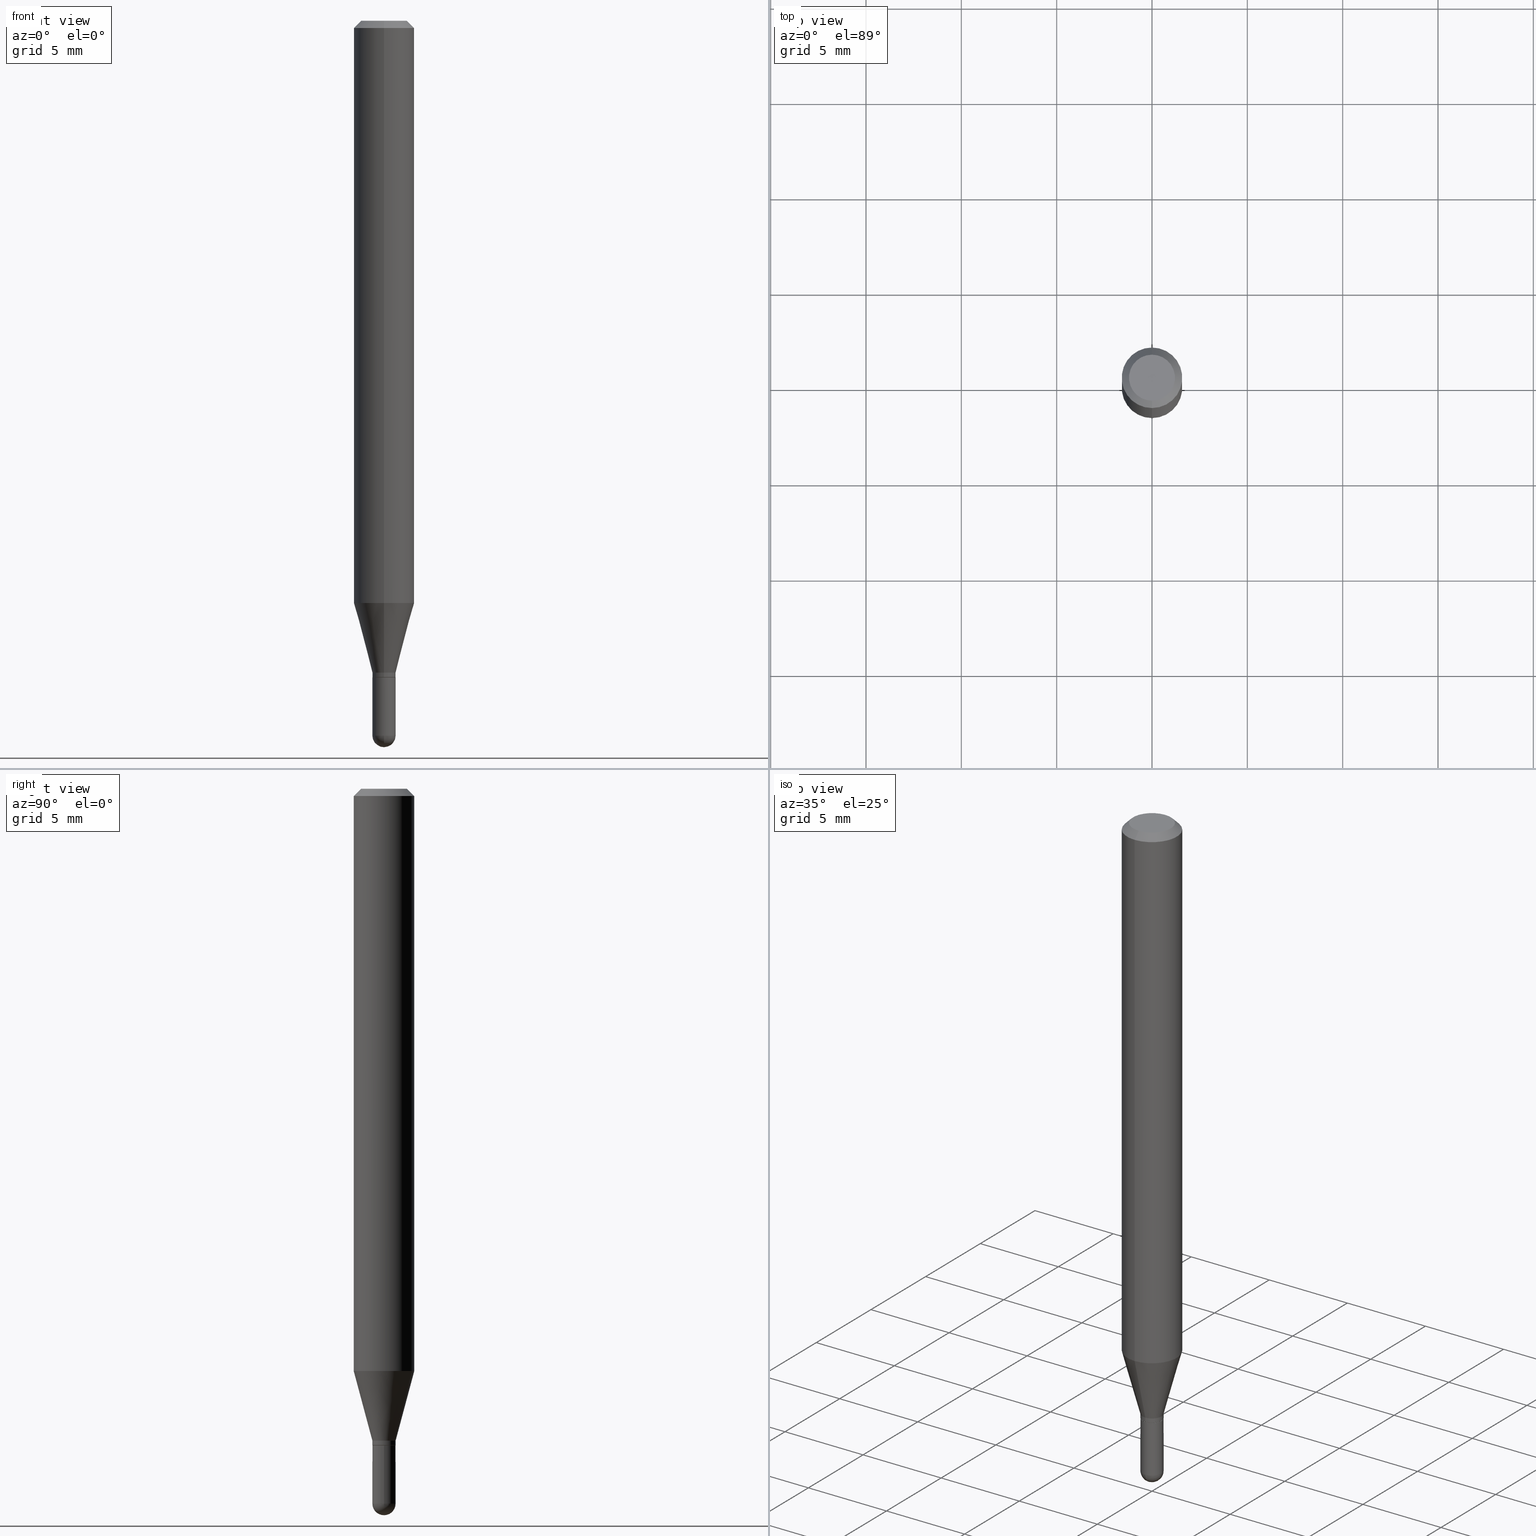
[diagram: canonical four-view strip — front | top / right | iso, engineering-drawing reading convention]
A machine part, canonical four-view strip (front | top / right | iso — engineering-drawing reading convention). The complete STEP part file that produces these views, byte-faithful:
ISO-10303-21;
HEADER;
FILE_DESCRIPTION (( 'STEP AP203' ),
    '1' );
FILE_NAME ('00925.STEP',
    '2024-03-07T18:57:01',
    ( '' ),
    ( '' ),
    'SwSTEP 2.0',
    'SolidWorks 2023',
    '' );
FILE_SCHEMA (( 'CONFIG_CONTROL_DESIGN' ));
ENDSEC;

DATA;
#1 = LINE ( 'NONE', #390, #440 ) ;
#2 = VERTEX_POINT ( 'NONE', #88 ) ;
#3 = LINE ( 'NONE', #154, #249 ) ;
#4 = EDGE_LOOP ( 'NONE', ( #438, #356 ) ) ;
#5 = CIRCLE ( 'NONE', #409, 0.04749999999999999362 ) ;
#6 = AXIS2_PLACEMENT_3D ( 'NONE', #458, #24, #225 ) ;
#7 = CARTESIAN_POINT ( 'NONE',  ( -1.675911042644373241E-16, -0.02400000000000474323, -1.355500000000000371 ) ) ;
#8 = CARTESIAN_POINT ( 'NONE',  ( -1.675911042644369543E-16, -0.02400000000000462527, -1.346000000000000085 ) ) ;
#9 = FACE_OUTER_BOUND ( 'NONE', #190, .T. ) ;
#10 = VECTOR ( 'NONE', #411, 39.37007874015748143 ) ;
#11 = ORIENTED_EDGE ( 'NONE', *, *, #361, .F. ) ;
#12 = AXIS2_PLACEMENT_3D ( 'NONE', #313, #437, #152 ) ;
#13 = FACE_OUTER_BOUND ( 'NONE', #188, .T. ) ;
#14 = DIRECTION ( 'NONE',  ( -4.937700262164674260E-15, -0.7071067811865632269, 0.7071067811865319186 ) ) ;
#15 =( NAMED_UNIT ( * ) PLANE_ANGLE_UNIT ( ) SI_UNIT ( $, .RADIAN. ) );
#16 = DIRECTION ( 'NONE',  ( -6.982962677686265922E-15, -1.000000000000000000, 0.000000000000000000 ) ) ;
#17 = CIRCLE ( 'NONE', #389, 0.02400000000000003866 ) ;
#18 = AXIS2_PLACEMENT_3D ( 'NONE', #97, #65, #307 ) ;
#19 = DIRECTION ( 'NONE',  ( -2.445477235489228020E-29, 3.491469267599920324E-15, 1.000000000000000000 ) ) ;
#20 =( NAMED_UNIT ( * ) SI_UNIT ( $, .STERADIAN. ) SOLID_ANGLE_UNIT ( ) );
#21 = EDGE_CURVE ( 'NONE', #323, #510, #166, .T. ) ;
#22 = CARTESIAN_POINT ( 'NONE',  ( -1.640996229255941198E-16, -0.02350000000000473585, -1.356000000000000316 ) ) ;
#23 = APPROVAL_DATE_TIME ( #63, #84 ) ;
#24 = DIRECTION ( 'NONE',  ( -2.445477235489228020E-29, 3.491469267599920324E-15, 1.000000000000000000 ) ) ;
#25 = AXIS2_PLACEMENT_3D ( 'NONE', #434, #280, #150 ) ;
#26 = ADVANCED_FACE ( 'NONE', ( #368 ), #47, .T. ) ;
#27 = CARTESIAN_POINT ( 'NONE',  ( 3.316055701187045333E-29, -4.734448695471306216E-15, -1.356000000000000316 ) ) ;
#28 = EDGE_LOOP ( 'NONE', ( #135, #367, #195, #198 ) ) ;
#29 = EDGE_CURVE ( 'NONE', #115, #271, #240, .T. ) ;
#30 = CARTESIAN_POINT ( 'NONE',  ( 3.609511957929261635E-29, -5.153426456132482850E-15, -1.475999999999999979 ) ) ;
#31 = ORIENTED_EDGE ( 'NONE', *, *, #169, .F. ) ;
#32 = DIRECTION ( 'NONE',  ( -2.445468806185136597E-29, 3.491481338843145583E-15, 1.000000000000000000 ) ) ;
#33 = APPROVAL_ROLE ( '' ) ;
#34 = ORIENTED_EDGE ( 'NONE', *, *, #59, .F. ) ;
#35 = CIRCLE ( 'NONE', #350, 0.06250000000000000000 ) ;
#36 = FACE_OUTER_BOUND ( 'NONE', #286, .T. ) ;
#37 = LOCAL_TIME ( 13, 57, 1.000000000000000000, #338 ) ;
#38 = DATE_AND_TIME ( #255, #283 ) ;
#39 = VERTEX_POINT ( 'NONE', #413 ) ;
#40 = CARTESIAN_POINT ( 'NONE',  ( 0.000000000000000000, 0.000000000000000000, 0.000000000000000000 ) ) ;
#41 = EDGE_LOOP ( 'NONE', ( #145, #500, #171, #393 ) ) ;
#42 = DIRECTION ( 'NONE',  ( -2.445477235489228020E-29, 3.491469267599920324E-15, 1.000000000000000000 ) ) ;
#43 = CONICAL_SURFACE ( 'NONE', #172, 0.02399999999999992764, 0.2617993877991505181 ) ;
#44 = CONICAL_SURFACE ( 'NONE', #109, 0.02350000000000000352, 0.7853981633974739252 ) ;
#45 = DIRECTION ( 'NONE',  ( -7.105427357600999492E-15, -1.000000000000000000, 0.000000000000000000 ) ) ;
#46 = CARTESIAN_POINT ( 'NONE',  ( -0.02400000000000000397, -4.773407319219470337E-15, -1.475999999999999979 ) ) ;
#47 = CYLINDRICAL_SURFACE ( 'NONE', #461, 0.02399999999999992764 ) ;
#48 = ADVANCED_FACE ( 'NONE', ( #247 ), #50, .F. ) ;
#49 = CLOSED_SHELL ( 'NONE', ( #26, #448, #233, #345, #285, #148, #314, #136, #48, #436, #95, #92 ) ) ;
#50 = PLANE ( 'NONE',  #129 ) ;
#51 = CIRCLE ( 'NONE', #365, 0.02400000000000000050 ) ;
#52 = DIRECTION ( 'NONE',  ( 6.982962677686265922E-15, 1.000000000000000000, 0.000000000000000000 ) ) ;
#53 = SECURITY_CLASSIFICATION_LEVEL ( 'unclassified' ) ;
#54 = ORIENTED_EDGE ( 'NONE', *, *, #268, .F. ) ;
#55 = DIMENSIONAL_EXPONENTS ( 1.000000000000000000, 0.000000000000000000, 0.000000000000000000, 0.000000000000000000, 0.000000000000000000, 0.000000000000000000, 0.000000000000000000 ) ;
#56 = DIRECTION ( 'NONE',  ( -2.445468806185136597E-29, 3.491481338843145583E-15, 1.000000000000000000 ) ) ;
#57 = APPLICATION_PROTOCOL_DEFINITION ( 'international standard', 'config_control_design', 1994, #181 ) ;
#58 = FACE_OUTER_BOUND ( 'NONE', #358, .T. ) ;
#59 = EDGE_CURVE ( 'NONE', #159, #71, #364, .T. ) ;
#60 = DIRECTION ( 'NONE',  ( 1.000000000000000000, 0.000000000000000000, 0.000000000000000000 ) ) ;
#61 = AXIS2_PLACEMENT_3D ( 'NONE', #492, #56, #139 ) ;
#62 = CARTESIAN_POINT ( 'NONE',  ( 3.840629472727447874E-16, 0.04749999999999999362, -1.747056831868805136E-16 ) ) ;
#63 = DATE_AND_TIME ( #335, #164 ) ;
#64 = DIRECTION ( 'NONE',  ( 1.839019923739601893E-15, 0.2588190451025252359, 0.9659258262890670910 ) ) ;
#65 = DIRECTION ( 'NONE',  ( -1.000000000000000000, 6.982962677686265922E-15, -4.883557194083112901E-29 ) ) ;
#66 = DIRECTION ( 'NONE',  ( 1.000000000000000000, -6.982962677686250144E-15, 0.000000000000000000 ) ) ;
#67 = VERTEX_POINT ( 'NONE', #81 ) ;
#68 = CONICAL_SURFACE ( 'NONE', #218, 0.06250000000000000000, 0.7853981633974483900 ) ;
#69 = AXIS2_PLACEMENT_3D ( 'NONE', #187, #399, #475 ) ;
#70 = CARTESIAN_POINT ( 'NONE',  ( -1.675911042644698646E-16, -0.02399999999999992764, 8.379526242239783327E-17 ) ) ;
#71 = VERTEX_POINT ( 'NONE', #251 ) ;
#72 = FACE_OUTER_BOUND ( 'NONE', #79, .T. ) ;
#73 = ORIENTED_EDGE ( 'NONE', *, *, #421, .F. ) ;
#74 = DIRECTION ( 'NONE',  ( -2.445477235489227739E-29, 3.491469267599920324E-15, 1.000000000000000000 ) ) ;
#75 = VERTEX_POINT ( 'NONE', #245 ) ;
#76 = AXIS2_PLACEMENT_3D ( 'NONE', #103, #342, #382 ) ;
#77 = AXIS2_PLACEMENT_3D ( 'NONE', #486, #219, #450 ) ;
#78 = DIRECTION ( 'NONE',  ( -6.982962677686265133E-15, -1.000000000000000000, 0.000000000000000000 ) ) ;
#79 = EDGE_LOOP ( 'NONE', ( #477, #263, #405, #31 ) ) ;
#80 = DIRECTION ( 'NONE',  ( -2.445468806185136597E-29, 3.491481338843145583E-15, 1.000000000000000000 ) ) ;
#81 = CARTESIAN_POINT ( 'NONE',  ( 0.02400000000000000397, -5.111528680066364398E-15, -1.475999999999999979 ) ) ;
#82 = ADVANCED_FACE ( 'NONE', ( #447 ), #293, .T. ) ;
#83 = CARTESIAN_POINT ( 'NONE',  ( -4.287811248607203282E-16, -0.06250000000000005551, -0.01499999999999979128 ) ) ;
#84 = APPROVAL ( #180, 'UNSPECIFIED' ) ;
#85 = DIRECTION ( 'NONE',  ( 6.982962677686265922E-15, 1.000000000000000000, -3.491469267599920324E-15 ) ) ;
#86 = UNCERTAINTY_MEASURE_WITH_UNIT (LENGTH_MEASURE( 1.000000000000000082E-05 ), #343, 'distance_accuracy_value', 'NONE');
#87 = DIRECTION ( 'NONE',  ( 6.982962677686265922E-15, 1.000000000000000000, 0.000000000000000000 ) ) ;
#88 = CARTESIAN_POINT ( 'NONE',  ( 1.687538997430566571E-16, 0.02349999999999526773, -1.356000000000000316 ) ) ;
#89 = AXIS2_PLACEMENT_3D ( 'NONE', #126, #481, #292 ) ;
#90 = CARTESIAN_POINT ( 'NONE',  ( 3.607459558835231439E-29, -5.156365608450436393E-15, -1.475999999999999979 ) ) ;
#91 = CIRCLE ( 'NONE', #141, 0.02399999999999992764 ) ;
#92 = ADVANCED_FACE ( 'NONE', ( #13 ), #412, .T. ) ;
#93 = PERSON_AND_ORGANIZATION_ROLE ( 'classification_officer' ) ;
#94 = DIRECTION ( 'NONE',  ( -6.982962677686265922E-15, -1.000000000000000000, 3.483106191921935554E-15 ) ) ;
#95 = ADVANCED_FACE ( 'NONE', ( #9 ), #415, .T. ) ;
#96 = CARTESIAN_POINT ( 'NONE',  ( 3.668215853233844657E-31, -5.237203901399883839E-17, -0.01500000000000000812 ) ) ;
#97 = CARTESIAN_POINT ( 'NONE',  ( 3.607459558835231439E-29, -5.156365608450436393E-15, -1.475999999999999979 ) ) ;
#98 = CC_DESIGN_PERSON_AND_ORGANIZATION_ASSIGNMENT ( #451, #93, ( #391 ) ) ;
#99 = CARTESIAN_POINT ( 'NONE',  ( 3.291612358968501825E-29, -4.699517634189492675E-15, -1.346000000000000085 ) ) ;
#100 = COORDINATED_UNIVERSAL_TIME_OFFSET ( 5, 0, .BEHIND. ) ;
#101 = EDGE_LOOP ( 'NONE', ( #321, #395, #147, #281 ) ) ;
#102 = AXIS2_PLACEMENT_3D ( 'NONE', #498, #19, #380 ) ;
#103 = CARTESIAN_POINT ( 'NONE',  ( 3.609511957929261635E-29, -5.153426456132482850E-15, -1.475999999999999979 ) ) ;
#104 = EDGE_LOOP ( 'NONE', ( #273, #441, #425, #113, #73 ) ) ;
#105 = CARTESIAN_POINT ( 'NONE',  ( -1.640996229255941198E-16, -0.02350000000000473585, -1.356000000000000316 ) ) ;
#106 = PLANE ( 'NONE',  #131 ) ;
#107 = APPROVAL_DATE_TIME ( #353, #165 ) ;
#108 = ORIENTED_EDGE ( 'NONE', *, *, #452, .F. ) ;
#109 = AXIS2_PLACEMENT_3D ( 'NONE', #466, #272, #236 ) ;
#110 = DIRECTION ( 'NONE',  ( -2.445477235489228300E-29, 3.491469267599920324E-15, 1.000000000000000000 ) ) ;
#111 = EDGE_LOOP ( 'NONE', ( #239, #449, #325, #279, #494 ) ) ;
#112 = CARTESIAN_POINT ( 'NONE',  ( 0.02400000000000000050, -4.902039799735776870E-15, -1.356000000000000316 ) ) ;
#113 = ORIENTED_EDGE ( 'NONE', *, *, #288, .T. ) ;
#114 = DIRECTION ( 'NONE',  ( 1.000000000000000000, -6.982962677686266711E-15, 4.876176775795935232E-29 ) ) ;
#115 = VERTEX_POINT ( 'NONE', #7 ) ;
#116 = VECTOR ( 'NONE', #64, 39.37007874015748854 ) ;
#117 = APPROVAL_PERSON_ORGANIZATION ( #223, #414, #215 ) ;
#118 = CARTESIAN_POINT ( 'NONE',  ( -4.364351673553912750E-16, -0.06250000000000005551, -0.01499999999999979128 ) ) ;
#119 = DESIGN_CONTEXT ( 'detailed design', #202, 'design' ) ;
#120 = DIRECTION ( 'NONE',  ( -1.000000000000000000, 6.982962677686265922E-15, -4.883557194083112901E-29 ) ) ;
#121 = EDGE_CURVE ( 'NONE', #132, #506, #445, .T. ) ;
#122 = DIRECTION ( 'NONE',  ( -6.982962677686265133E-15, -1.000000000000000000, 3.491469267599920324E-15 ) ) ;
#123 = AXIS2_PLACEMENT_3D ( 'NONE', #259, #134, #346 ) ;
#124 = VERTEX_POINT ( 'NONE', #46 ) ;
#125 = APPROVAL_PERSON_ORGANIZATION ( #167, #84, #459 ) ;
#126 = CARTESIAN_POINT ( 'NONE',  ( 3.314844392705649614E-29, -4.732686592231693632E-15, -1.355500000000000371 ) ) ;
#127 = DIRECTION ( 'NONE',  ( -2.445468806185136877E-29, 3.491481338843145188E-15, 1.000000000000000000 ) ) ;
#128 = PERSON_AND_ORGANIZATION_ROLE ( 'creator' ) ;
#129 = AXIS2_PLACEMENT_3D ( 'NONE', #211, #372, #85 ) ;
#130 = CARTESIAN_POINT ( 'NONE',  ( 0.02400000000000000397, -1.675911042644704316E-16, 1.170282426191024667E-30 ) ) ;
#131 = AXIS2_PLACEMENT_3D ( 'NONE', #269, #74, #197 ) ;
#132 = VERTEX_POINT ( 'NONE', #289 ) ;
#133 = EDGE_CURVE ( 'NONE', #75, #472, #17, .T. ) ;
#134 = DIRECTION ( 'NONE',  ( -2.445477235489228020E-29, 3.491469267599920324E-15, 1.000000000000000000 ) ) ;
#135 = ORIENTED_EDGE ( 'NONE', *, *, #268, .T. ) ;
#136 = ADVANCED_FACE ( 'NONE', ( #205 ), #68, .T. ) ;
#137 = CARTESIAN_POINT ( 'NONE',  ( 2.940236515241945390E-29, -4.197849517249188631E-15, -1.202316043908598697 ) ) ;
#138 = PERSON_AND_ORGANIZATION_ROLE ( 'creator' ) ;
#139 = DIRECTION ( 'NONE',  ( 1.000000000000000000, -6.982962677686266711E-15, 4.876176775795935232E-29 ) ) ;
#140 = ORIENTED_EDGE ( 'NONE', *, *, #213, .T. ) ;
#141 = AXIS2_PLACEMENT_3D ( 'NONE', #352, #504, #78 ) ;
#142 = DIRECTION ( 'NONE',  ( -2.445468806185136877E-29, 3.491481338843145188E-15, 1.000000000000000000 ) ) ;
#143 = ORIENTED_EDGE ( 'NONE', *, *, #421, .T. ) ;
#144 = LINE ( 'NONE', #351, #209 ) ;
#145 = ORIENTED_EDGE ( 'NONE', *, *, #133, .F. ) ;
#146 = LINE ( 'NONE', #70, #162 ) ;
#147 = ORIENTED_EDGE ( 'NONE', *, *, #59, .T. ) ;
#148 = ADVANCED_FACE ( 'NONE', ( #179 ), #43, .T. ) ;
#149 = CIRCLE ( 'NONE', #25, 0.02399999999999992764 ) ;
#150 = DIRECTION ( 'NONE',  ( -6.982962677686265133E-15, -1.000000000000000000, 0.000000000000000000 ) ) ;
#151 = ORIENTED_EDGE ( 'NONE', *, *, #456, .F. ) ;
#152 = DIRECTION ( 'NONE',  ( -6.982962677686265922E-15, -1.000000000000000000, 3.491469267599920324E-15 ) ) ;
#153 = ORIENTED_EDGE ( 'NONE', *, *, #329, .T. ) ;
#154 = CARTESIAN_POINT ( 'NONE',  ( 4.440892098500625669E-16, 0.06250000000000000000, -2.182168292249950203E-16 ) ) ;
#155 = ORIENTED_EDGE ( 'NONE', *, *, #468, .T. ) ;
#156 = CIRCLE ( 'NONE', #402, 0.02400000000000003866 ) ;
#157 = EDGE_CURVE ( 'NONE', #159, #323, #5, .T. ) ;
#158 = DIRECTION ( 'NONE',  ( -1.807323732225331717E-15, -0.2588190451025184080, 0.9659258262890689783 ) ) ;
#159 = VERTEX_POINT ( 'NONE', #62 ) ;
#160 = ORIENTED_EDGE ( 'NONE', *, *, #246, .T. ) ;
#161 = EDGE_CURVE ( 'NONE', #71, #510, #469, .T. ) ;
#162 = VECTOR ( 'NONE', #404, 39.37007874015748143 ) ;
#163 = DIRECTION ( 'NONE',  ( -2.445477235489228020E-29, 3.491469267599920324E-15, 1.000000000000000000 ) ) ;
#164 = LOCAL_TIME ( 13, 57, 1.000000000000000000, #100 ) ;
#165 = APPROVAL ( #229, 'UNSPECIFIED' ) ;
#166 = LINE ( 'NONE', #83, #318 ) ;
#167 = PERSON_AND_ORGANIZATION ( #256, #491 ) ;
#168 = CARTESIAN_POINT ( 'NONE',  ( 3.316067131323393615E-29, -4.734432326865493807E-15, -1.356000000000000316 ) ) ;
#169 = EDGE_CURVE ( 'NONE', #328, #115, #222, .T. ) ;
#170 = PERSON_AND_ORGANIZATION ( #256, #491 ) ;
#171 = ORIENTED_EDGE ( 'NONE', *, *, #186, .F. ) ;
#172 = AXIS2_PLACEMENT_3D ( 'NONE', #99, #214, #260 ) ;
#173 = DIRECTION ( 'NONE',  ( -2.445477235489228020E-29, 3.491469267599920324E-15, 1.000000000000000000 ) ) ;
#174 = CC_DESIGN_PERSON_AND_ORGANIZATION_ASSIGNMENT ( #266, #347, ( #420 ) ) ;
#175 = CIRCLE ( 'NONE', #470, 0.02400000000000000050 ) ;
#176 = MECHANICAL_CONTEXT ( 'NONE', #181, 'mechanical' ) ;
#177 = DIRECTION ( 'NONE',  ( 2.445477235489228020E-29, -3.491469267599920324E-15, -1.000000000000000000 ) ) ;
#178 = PERSON_AND_ORGANIZATION ( #256, #491 ) ;
#179 = FACE_OUTER_BOUND ( 'NONE', #237, .T. ) ;
#180 = APPROVAL_STATUS ( 'not_yet_approved' ) ;
#181 = APPLICATION_CONTEXT ( 'configuration controlled 3d designs of mechanical parts and assemblies' ) ;
#182 = LINE ( 'NONE', #130, #241 ) ;
#183 = AXIS2_PLACEMENT_3D ( 'NONE', #408, #208, #203 ) ;
#184 = CIRCLE ( 'NONE', #261, 0.06250000000000000000 ) ;
#185 = ADVANCED_BREP_SHAPE_REPRESENTATION ( '00925', ( #369, #192, #480 ), #232 ) ;
#186 = EDGE_CURVE ( 'NONE', #67, #39, #306, .T. ) ;
#187 = CARTESIAN_POINT ( 'NONE',  ( 0.000000000000000000, 0.000000000000000000, 0.000000000000000000 ) ) ;
#188 = EDGE_LOOP ( 'NONE', ( #316, #460, #153, #482 ) ) ;
#189 = FACE_OUTER_BOUND ( 'NONE', #28, .T. ) ;
#190 = EDGE_LOOP ( 'NONE', ( #433, #309, #200, #479 ) ) ;
#191 = ADVANCED_FACE ( 'NONE', ( #299 ), #216, .T. ) ;
#192 = MANIFOLD_SOLID_BREP ( 'Body-Move/Copy2[2]', #49 ) ;
#193 = DIRECTION ( 'NONE',  ( 1.000000000000000000, -6.982962677686250144E-15, 0.000000000000000000 ) ) ;
#194 = EDGE_CURVE ( 'NONE', #328, #2, #423, .T. ) ;
#195 = ORIENTED_EDGE ( 'NONE', *, *, #201, .F. ) ;
#196 = VECTOR ( 'NONE', #14, 39.37007874015748143 ) ;
#197 = DIRECTION ( 'NONE',  ( -6.982962677686265922E-15, -1.000000000000000000, 3.491469267599920324E-15 ) ) ;
#198 = ORIENTED_EDGE ( 'NONE', *, *, #373, .F. ) ;
#199 = CARTESIAN_POINT ( 'NONE',  ( -1.705302565823881057E-16, -0.02400000000000517691, -1.475999999999999979 ) ) ;
#200 = ORIENTED_EDGE ( 'NONE', *, *, #169, .T. ) ;
#201 = EDGE_CURVE ( 'NONE', #510, #71, #35, .T. ) ;
#202 = APPLICATION_CONTEXT ( 'configuration controlled 3d designs of mechanical parts and assemblies' ) ;
#203 = DIRECTION ( 'NONE',  ( -6.982962677686265922E-15, -1.000000000000000000, 0.000000000000000000 ) ) ;
#204 = AXIS2_PLACEMENT_3D ( 'NONE', #30, #505, #66 ) ;
#205 = FACE_OUTER_BOUND ( 'NONE', #101, .T. ) ;
#206 = CARTESIAN_POINT ( 'NONE',  ( 0.000000000000000000, 0.000000000000000000, 0.000000000000000000 ) ) ;
#207 = EDGE_CURVE ( 'NONE', #443, #132, #291, .T. ) ;
#208 = DIRECTION ( 'NONE',  ( -2.445477235489228020E-29, 3.491469267599920324E-15, 1.000000000000000000 ) ) ;
#209 = VECTOR ( 'NONE', #142, 39.37007874015748143 ) ;
#210 = LOCAL_TIME ( 13, 57, 1.000000000000000000, #432 ) ;
#211 = CARTESIAN_POINT ( 'NONE',  ( 3.316907271900976096E-16, 0.04749999999999999362, -1.702752366989383478E-16 ) ) ;
#212 = PRODUCT_DEFINITION_SHAPE ( 'NONE', 'NONE',  #265 ) ;
#213 = EDGE_CURVE ( 'NONE', #474, #506, #296, .T. ) ;
#214 = DIRECTION ( 'NONE',  ( -2.445477235489228020E-29, 3.491469267599920324E-15, 1.000000000000000000 ) ) ;
#215 = APPROVAL_ROLE ( '' ) ;
#216 = CYLINDRICAL_SURFACE ( 'NONE', #61, 0.02400000000000000397 ) ;
#217 = COORDINATED_UNIVERSAL_TIME_OFFSET ( 5, 0, .BEHIND. ) ;
#218 = AXIS2_PLACEMENT_3D ( 'NONE', #331, #330, #370 ) ;
#219 = DIRECTION ( 'NONE',  ( -2.445477235489228020E-29, 3.491469267599920324E-15, 1.000000000000000000 ) ) ;
#220 = AXIS2_PLACEMENT_3D ( 'NONE', #396, #32, #193 ) ;
#221 = APPROVAL_STATUS ( 'not_yet_approved' ) ;
#222 = LINE ( 'NONE', #22, #196 ) ;
#223 = PERSON_AND_ORGANIZATION ( #256, #491 ) ;
#224 = ORIENTED_EDGE ( 'NONE', *, *, #373, .T. ) ;
#225 = DIRECTION ( 'NONE',  ( -6.982962677686265133E-15, -1.000000000000000000, 0.000000000000000000 ) ) ;
#226 = DATE_AND_TIME ( #381, #416 ) ;
#227 = EDGE_CURVE ( 'NONE', #2, #328, #332, .T. ) ;
#228 = CYLINDRICAL_SURFACE ( 'NONE', #69, 0.06250000000000000000 ) ;
#229 = APPROVAL_STATUS ( 'not_yet_approved' ) ;
#230 = EDGE_LOOP ( 'NONE', ( #339, #512, #151, #108 ) ) ;
#231 = VECTOR ( 'NONE', #110, 39.37007874015748143 ) ;
#232 =( GEOMETRIC_REPRESENTATION_CONTEXT ( 3 ) GLOBAL_UNCERTAINTY_ASSIGNED_CONTEXT ( ( #86 ) ) GLOBAL_UNIT_ASSIGNED_CONTEXT ( ( #343, #15, #20 ) ) REPRESENTATION_CONTEXT ( 'NONE', 'WORKASPACE' ) );
#233 = ADVANCED_FACE ( 'NONE', ( #58 ), #484, .T. ) ;
#234 = CARTESIAN_POINT ( 'NONE',  ( -0.02400000000000000050, -4.773407319219470337E-15, -1.356000000000000316 ) ) ;
#235 = ORIENTED_EDGE ( 'NONE', *, *, #418, .T. ) ;
#236 = DIRECTION ( 'NONE',  ( -6.982962677686265922E-15, -1.000000000000000000, 0.000000000000000000 ) ) ;
#237 = EDGE_LOOP ( 'NONE', ( #303, #467, #397, #252 ) ) ;
#238 = DIRECTION ( 'NONE',  ( -2.445468806185136597E-29, 3.491481338843145583E-15, 1.000000000000000000 ) ) ;
#239 = ORIENTED_EDGE ( 'NONE', *, *, #452, .T. ) ;
#240 = CIRCLE ( 'NONE', #89, 0.02399999999999992764 ) ;
#241 = VECTOR ( 'NONE', #127, 39.37007874015748143 ) ;
#242 = DIRECTION ( 'NONE',  ( -2.445477235489228300E-29, 3.491469267599920324E-15, 1.000000000000000000 ) ) ;
#243 = ORIENTED_EDGE ( 'NONE', *, *, #275, .F. ) ;
#244 = CARTESIAN_POINT ( 'NONE',  ( 3.316055701187045333E-29, -4.734448695471306216E-15, -1.356000000000000316 ) ) ;
#245 = CARTESIAN_POINT ( 'NONE',  ( 3.667177009730690077E-29, -5.238691584423694948E-15, -1.500000000000000222 ) ) ;
#246 = EDGE_CURVE ( 'NONE', #443, #474, #344, .T. ) ;
#247 = FACE_OUTER_BOUND ( 'NONE', #4, .T. ) ;
#248 = AXIS2_PLACEMENT_3D ( 'NONE', #375, #424, #94 ) ;
#249 = VECTOR ( 'NONE', #284, 39.37007874015748143 ) ;
#250 = CARTESIAN_POINT ( 'NONE',  ( 4.364351673553919652E-16, 0.06249999999999995143, -0.01500000000000022669 ) ) ;
#251 = CARTESIAN_POINT ( 'NONE',  ( 4.440892098500920998E-16, 0.06249999999999993755, -0.01500000000000022669 ) ) ;
#252 = ORIENTED_EDGE ( 'NONE', *, *, #213, .F. ) ;
#253 = CC_DESIGN_APPROVAL ( #414, ( #265 ) ) ;
#254 = DIRECTION ( 'NONE',  ( -2.445477235489228020E-29, 3.491469267599920324E-15, 1.000000000000000000 ) ) ;
#255 = CALENDAR_DATE ( 2024, 7, 3 ) ;
#256 = PERSON ( 'UNSPECIFIED', 'UNSPECIFIED', 'UNSPECIFIED', ('UNSPECIFIED'), ('UNSPECIFIED'), ('UNSPECIFIED') ) ;
#257 = CARTESIAN_POINT ( 'NONE',  ( 3.291612358968501825E-29, -4.699517634189492675E-15, -1.346000000000000085 ) ) ;
#258 = DATE_TIME_ROLE ( 'creation_date' ) ;
#259 = CARTESIAN_POINT ( 'NONE',  ( 2.940236515241945390E-29, -4.197849517249188631E-15, -1.202316043908598697 ) ) ;
#260 = DIRECTION ( 'NONE',  ( -6.982962677686265133E-15, -1.000000000000000000, 0.000000000000000000 ) ) ;
#261 = AXIS2_PLACEMENT_3D ( 'NONE', #137, #173, #374 ) ;
#262 = APPROVAL_PERSON_ORGANIZATION ( #311, #165, #33 ) ;
#263 = ORIENTED_EDGE ( 'NONE', *, *, #301, .T. ) ;
#264 = DIRECTION ( 'NONE',  ( -2.445477235489228020E-29, 3.491469267599920324E-15, 1.000000000000000000 ) ) ;
#265 = PRODUCT_DEFINITION ( 'UNKNOWN', '', #403, #119 ) ;
#266 = PERSON_AND_ORGANIZATION ( #256, #491 ) ;
#267 = ORIENTED_EDGE ( 'NONE', *, *, #329, .F. ) ;
#268 = EDGE_CURVE ( 'NONE', #506, #474, #184, .T. ) ;
#269 = CARTESIAN_POINT ( 'NONE',  ( 3.316067131323393615E-29, -4.734432326865493807E-15, -1.356000000000000316 ) ) ;
#270 = CALENDAR_DATE ( 2024, 7, 3 ) ;
#271 = VERTEX_POINT ( 'NONE', #422 ) ;
#272 = DIRECTION ( 'NONE',  ( -2.445477235489228020E-29, 3.491469267599920324E-15, 1.000000000000000000 ) ) ;
#273 = ORIENTED_EDGE ( 'NONE', *, *, #385, .F. ) ;
#274 = CIRCLE ( 'NONE', #220, 0.02400000000000000397 ) ;
#275 = EDGE_CURVE ( 'NONE', #323, #159, #478, .T. ) ;
#276 = DIRECTION ( 'NONE',  ( 1.000000000000000000, -6.982962677686251722E-15, 0.000000000000000000 ) ) ;
#277 = ORIENTED_EDGE ( 'NONE', *, *, #227, .F. ) ;
#278 = FACE_OUTER_BOUND ( 'NONE', #360, .T. ) ;
#279 = ORIENTED_EDGE ( 'NONE', *, *, #288, .F. ) ;
#280 = DIRECTION ( 'NONE',  ( -2.445477235489228020E-29, 3.491469267599920324E-15, 1.000000000000000000 ) ) ;
#281 = ORIENTED_EDGE ( 'NONE', *, *, #161, .T. ) ;
#282 = AXIS2_PLACEMENT_3D ( 'NONE', #40, #473, #114 ) ;
#283 = LOCAL_TIME ( 13, 57, 1.000000000000000000, #489 ) ;
#284 = DIRECTION ( 'NONE',  ( -2.445477235489228300E-29, 3.491469267599920324E-15, 1.000000000000000000 ) ) ;
#285 = ADVANCED_FACE ( 'NONE', ( #419 ), #490, .T. ) ;
#286 = EDGE_LOOP ( 'NONE', ( #155, #143 ) ) ;
#287 = CARTESIAN_POINT ( 'NONE',  ( 3.607459558835231439E-29, -5.156365608450436393E-15, -1.475999999999999979 ) ) ;
#288 = EDGE_CURVE ( 'NONE', #67, #312, #182, .T. ) ;
#289 = CARTESIAN_POINT ( 'NONE',  ( -1.675911042644369543E-16, -0.02400000000000462527, -1.346000000000000085 ) ) ;
#290 = EDGE_CURVE ( 'NONE', #75, #39, #156, .T. ) ;
#291 = CIRCLE ( 'NONE', #462, 0.02399999999999992764 ) ;
#292 = DIRECTION ( 'NONE',  ( -6.982962677686265133E-15, -1.000000000000000000, 0.000000000000000000 ) ) ;
#293 = SPHERICAL_SURFACE ( 'NONE', #348, 0.02400000000000003866 ) ;
#294 = CARTESIAN_POINT ( 'NONE',  ( 2.166911205863144618E-46, -3.093753550879202143E-32, -8.860892975884294793E-18 ) ) ;
#295 = PERSON_AND_ORGANIZATION_ROLE ( 'design_supplier' ) ;
#296 = CIRCLE ( 'NONE', #123, 0.06250000000000000000 ) ;
#297 = CC_DESIGN_APPROVAL ( #84, ( #403 ) ) ;
#298 = DIRECTION ( 'NONE',  ( 5.024295867788190974E-15, 0.7071067811865681119, 0.7071067811865270336 ) ) ;
#299 = FACE_OUTER_BOUND ( 'NONE', #111, .T. ) ;
#300 = CARTESIAN_POINT ( 'NONE',  ( 0.000000000000000000, 0.000000000000000000, 0.000000000000000000 ) ) ;
#301 = EDGE_CURVE ( 'NONE', #2, #271, #337, .T. ) ;
#302 = DIRECTION ( 'NONE',  ( 6.982962677686265922E-15, 1.000000000000000000, -3.483106191921935554E-15 ) ) ;
#303 = ORIENTED_EDGE ( 'NONE', *, *, #246, .F. ) ;
#304 = EDGE_CURVE ( 'NONE', #271, #115, #149, .T. ) ;
#305 = CARTESIAN_POINT ( 'NONE',  ( 3.668215853233844657E-31, -5.237203901399883839E-17, -0.01500000000000000812 ) ) ;
#306 = CIRCLE ( 'NONE', #76, 0.02400000000000000397 ) ;
#307 = DIRECTION ( 'NONE',  ( 6.982962677686265922E-15, 1.000000000000000000, 0.000000000000000000 ) ) ;
#308 = CC_DESIGN_APPROVAL ( #165, ( #391 ) ) ;
#309 = ORIENTED_EDGE ( 'NONE', *, *, #227, .T. ) ;
#310 = CARTESIAN_POINT ( 'NONE',  ( 1.705302565824234812E-16, 0.02399999999999992764, -8.379526242239783327E-17 ) ) ;
#311 = PERSON_AND_ORGANIZATION ( #256, #491 ) ;
#312 = VERTEX_POINT ( 'NONE', #112 ) ;
#313 = CARTESIAN_POINT ( 'NONE',  ( 0.000000000000000000, 0.000000000000000000, 0.000000000000000000 ) ) ;
#314 = ADVANCED_FACE ( 'NONE', ( #464 ), #322, .T. ) ;
#315 = DATE_TIME_ROLE ( 'classification_date' ) ;
#316 = ORIENTED_EDGE ( 'NONE', *, *, #418, .F. ) ;
#317 = CARTESIAN_POINT ( 'NONE',  ( -3.773273898774340269E-16, -0.04749999999999999362, 1.569838972351119241E-16 ) ) ;
#318 = VECTOR ( 'NONE', #333, 39.37007874015748143 ) ;
#319 = EDGE_LOOP ( 'NONE', ( #428, #140, #224, #465 ) ) ;
#320 = DIRECTION ( 'NONE',  ( -1.000000000000000000, 6.982962677686265922E-15, -4.876176775795935793E-29 ) ) ;
#321 = ORIENTED_EDGE ( 'NONE', *, *, #21, .F. ) ;
#322 = CYLINDRICAL_SURFACE ( 'NONE', #12, 0.06250000000000000000 ) ;
#323 = VERTEX_POINT ( 'NONE', #317 ) ;
#324 = CARTESIAN_POINT ( 'NONE',  ( -4.364351673553623829E-16, -0.06250000000000421885, -1.202316043908598253 ) ) ;
#325 = ORIENTED_EDGE ( 'NONE', *, *, #468, .F. ) ;
#326 = VECTOR ( 'NONE', #158, 39.37007874015748854 ) ;
#327 = VECTOR ( 'NONE', #298, 39.37007874015748143 ) ;
#328 = VERTEX_POINT ( 'NONE', #105 ) ;
#329 = EDGE_CURVE ( 'NONE', #115, #132, #146, .T. ) ;
#330 = DIRECTION ( 'NONE',  ( 2.445477235489228020E-29, -3.491469267599920324E-15, -1.000000000000000000 ) ) ;
#331 = CARTESIAN_POINT ( 'NONE',  ( 3.668215853233844657E-31, -5.237203901399883839E-17, -0.01500000000000000812 ) ) ;
#332 = CIRCLE ( 'NONE', #102, 0.02350000000000000352 ) ;
#333 = DIRECTION ( 'NONE',  ( -4.851104656540964275E-15, -0.7071067811865500152, -0.7071067811865450192 ) ) ;
#334 = CARTESIAN_POINT ( 'NONE',  ( 3.607459558835231439E-29, -5.156365608450436393E-15, -1.475999999999999979 ) ) ;
#335 = CALENDAR_DATE ( 2024, 7, 3 ) ;
#336 = CC_DESIGN_DATE_AND_TIME_ASSIGNMENT ( #455, #258, ( #265 ) ) ;
#337 = LINE ( 'NONE', #488, #327 ) ;
#338 = COORDINATED_UNIVERSAL_TIME_OFFSET ( 5, 0, .BEHIND. ) ;
#339 = ORIENTED_EDGE ( 'NONE', *, *, #290, .F. ) ;
#340 = AXIS2_PLACEMENT_3D ( 'NONE', #407, #42, #122 ) ;
#341 = CIRCLE ( 'NONE', #410, 0.02400000000000000397 ) ;
#342 = DIRECTION ( 'NONE',  ( -2.445468806185136597E-29, 3.491481338843145583E-15, 1.000000000000000000 ) ) ;
#343 =( CONVERSION_BASED_UNIT ( 'INCH', #493 ) LENGTH_UNIT ( ) NAMED_UNIT ( #55 ) );
#344 = LINE ( 'NONE', #463, #116 ) ;
#345 = ADVANCED_FACE ( 'NONE', ( #189 ), #228, .T. ) ;
#346 = DIRECTION ( 'NONE',  ( -6.982962677686265922E-15, -1.000000000000000000, 4.370956789862821150E-15 ) ) ;
#347 = PERSON_AND_ORGANIZATION_ROLE ( 'design_owner' ) ;
#348 = AXIS2_PLACEMENT_3D ( 'NONE', #334, #120, #87 ) ;
#349 = ADVANCED_FACE ( 'NONE', ( #36 ), #394, .F. ) ;
#350 = AXIS2_PLACEMENT_3D ( 'NONE', #96, #386, #457 ) ;
#351 = CARTESIAN_POINT ( 'NONE',  ( -0.02400000000000000397, 1.705302565824240728E-16, -1.180544421661177751E-30 ) ) ;
#352 = CARTESIAN_POINT ( 'NONE',  ( 3.291612358968501825E-29, -4.699517634189492675E-15, -1.346000000000000085 ) ) ;
#353 = DATE_AND_TIME ( #270, #210 ) ;
#354 = ORIENTED_EDGE ( 'NONE', *, *, #29, .T. ) ;
#355 = FACE_OUTER_BOUND ( 'NONE', #104, .T. ) ;
#356 = ORIENTED_EDGE ( 'NONE', *, *, #275, .T. ) ;
#357 = DIRECTION ( 'NONE',  ( -2.445468806185136597E-29, 3.491481338843145583E-15, 1.000000000000000000 ) ) ;
#358 = EDGE_LOOP ( 'NONE', ( #243, #430, #483, #34 ) ) ;
#359 = DIRECTION ( 'NONE',  ( 1.000000000000000000, -6.982962677686250144E-15, 0.000000000000000000 ) ) ;
#360 = EDGE_LOOP ( 'NONE', ( #401, #277 ) ) ;
#361 = EDGE_CURVE ( 'NONE', #132, #443, #91, .T. ) ;
#362 = CARTESIAN_POINT ( 'NONE',  ( 4.440892098500918040E-16, 0.06249999999999577421, -1.202316043908598919 ) ) ;
#363 = VERTEX_POINT ( 'NONE', #234 ) ;
#364 = LINE ( 'NONE', #250, #10 ) ;
#365 = AXIS2_PLACEMENT_3D ( 'NONE', #27, #357, #276 ) ;
#366 = CC_DESIGN_PERSON_AND_ORGANIZATION_ASSIGNMENT ( #178, #138, ( #265 ) ) ;
#367 = ORIENTED_EDGE ( 'NONE', *, *, #476, .T. ) ;
#368 = FACE_OUTER_BOUND ( 'NONE', #378, .T. ) ;
#369 = MANIFOLD_SOLID_BREP ( 'Body-Move/Copy2[1]', #446 ) ;
#370 = DIRECTION ( 'NONE',  ( 6.982962677686265922E-15, 1.000000000000000000, -3.483106191921935554E-15 ) ) ;
#371 = AXIS2_PLACEMENT_3D ( 'NONE', #508, #439, #320 ) ;
#372 = DIRECTION ( 'NONE',  ( 2.445477235489227739E-29, -3.491469267599920324E-15, -1.000000000000000000 ) ) ;
#373 = EDGE_CURVE ( 'NONE', #506, #510, #1, .T. ) ;
#374 = DIRECTION ( 'NONE',  ( -6.982962677686265922E-15, -1.000000000000000000, 4.370956789862821150E-15 ) ) ;
#375 = CARTESIAN_POINT ( 'NONE',  ( 3.668215853233844657E-31, -5.237203901399883839E-17, -0.01500000000000000812 ) ) ;
#376 = ADVANCED_FACE ( 'NONE', ( #355 ), #471, .T. ) ;
#377 = SPHERICAL_SURFACE ( 'NONE', #18, 0.02400000000000003866 ) ;
#378 = EDGE_LOOP ( 'NONE', ( #354, #235, #11, #267 ) ) ;
#379 = AXIS2_PLACEMENT_3D ( 'NONE', #305, #177, #302 ) ;
#380 = DIRECTION ( 'NONE',  ( -6.982962677686265922E-15, -1.000000000000000000, 0.000000000000000000 ) ) ;
#381 = CALENDAR_DATE ( 2024, 7, 3 ) ;
#382 = DIRECTION ( 'NONE',  ( 1.000000000000000000, -6.982962677686250144E-15, 0.000000000000000000 ) ) ;
#383 =( LENGTH_UNIT ( ) NAMED_UNIT ( * ) SI_UNIT ( $, .METRE. ) );
#384 = ORIENTED_EDGE ( 'NONE', *, *, #121, .F. ) ;
#385 = EDGE_CURVE ( 'NONE', #124, #363, #144, .T. ) ;
#386 = DIRECTION ( 'NONE',  ( -2.445477235489228020E-29, 3.491469267599920324E-15, 1.000000000000000000 ) ) ;
#387 = CALENDAR_DATE ( 2024, 7, 3 ) ;
#388 = CC_DESIGN_DATE_AND_TIME_ASSIGNMENT ( #38, #315, ( #391 ) ) ;
#389 = AXIS2_PLACEMENT_3D ( 'NONE', #287, #444, #45 ) ;
#390 = CARTESIAN_POINT ( 'NONE',  ( -4.364351673553916201E-16, -0.06250000000000000000, 2.182168292249950203E-16 ) ) ;
#391 = SECURITY_CLASSIFICATION ( '', '', #53 ) ;
#392 = SHAPE_DEFINITION_REPRESENTATION ( #212, #185 ) ;
#393 = ORIENTED_EDGE ( 'NONE', *, *, #398, .F. ) ;
#394 = PLANE ( 'NONE',  #371 ) ;
#395 = ORIENTED_EDGE ( 'NONE', *, *, #157, .F. ) ;
#396 = CARTESIAN_POINT ( 'NONE',  ( 3.609511957929261635E-29, -5.153426456132482850E-15, -1.475999999999999979 ) ) ;
#397 = ORIENTED_EDGE ( 'NONE', *, *, #121, .T. ) ;
#398 = EDGE_CURVE ( 'NONE', #472, #67, #453, .T. ) ;
#399 = DIRECTION ( 'NONE',  ( -2.445477235489228020E-29, 3.491469267599920324E-15, 1.000000000000000000 ) ) ;
#400 = CC_DESIGN_PERSON_AND_ORGANIZATION_ASSIGNMENT ( #170, #295, ( #403 ) ) ;
#401 = ORIENTED_EDGE ( 'NONE', *, *, #194, .F. ) ;
#402 = AXIS2_PLACEMENT_3D ( 'NONE', #90, #417, #52 ) ;
#403 = PRODUCT_DEFINITION_FORMATION_WITH_SPECIFIED_SOURCE ( 'ANY', '', #420, .NOT_KNOWN. ) ;
#404 = DIRECTION ( 'NONE',  ( -2.445477235489228300E-29, 3.491469267599920324E-15, 1.000000000000000000 ) ) ;
#405 = ORIENTED_EDGE ( 'NONE', *, *, #29, .F. ) ;
#406 = DIRECTION ( 'NONE',  ( 1.000000000000000000, -6.982962677686251722E-15, 0.000000000000000000 ) ) ;
#407 = CARTESIAN_POINT ( 'NONE',  ( 0.000000000000000000, 0.000000000000000000, 0.000000000000000000 ) ) ;
#408 = CARTESIAN_POINT ( 'NONE',  ( 3.316067131323393615E-29, -4.734432326865493807E-15, -1.356000000000000316 ) ) ;
#409 = AXIS2_PLACEMENT_3D ( 'NONE', #294, #264, #454 ) ;
#410 = AXIS2_PLACEMENT_3D ( 'NONE', #511, #238, #359 ) ;
#411 = DIRECTION ( 'NONE',  ( 4.937700262164548042E-15, 0.7071067811865451302, -0.7071067811865499042 ) ) ;
#412 = CYLINDRICAL_SURFACE ( 'NONE', #340, 0.02399999999999992764 ) ;
#413 = CARTESIAN_POINT ( 'NONE',  ( 1.675911042645066206E-16, 0.02399999999999486572, -1.475999999999999979 ) ) ;
#414 = APPROVAL ( #221, 'UNSPECIFIED' ) ;
#415 = CONICAL_SURFACE ( 'NONE', #183, 0.02350000000000000352, 0.7853981633974739252 ) ;
#416 = LOCAL_TIME ( 13, 57, 1.000000000000000000, #217 ) ;
#417 = DIRECTION ( 'NONE',  ( 1.000000000000000000, -6.982962677686265922E-15, 4.883557194083112340E-29 ) ) ;
#418 = EDGE_CURVE ( 'NONE', #271, #443, #431, .T. ) ;
#419 = FACE_OUTER_BOUND ( 'NONE', #435, .T. ) ;
#420 = PRODUCT ( '00925', '00925', '', ( #176 ) ) ;
#421 = EDGE_CURVE ( 'NONE', #363, #312, #51, .T. ) ;
#422 = CARTESIAN_POINT ( 'NONE',  ( 1.705302565824560463E-16, 0.02399999999999511205, -1.355500000000000371 ) ) ;
#423 = CIRCLE ( 'NONE', #501, 0.02350000000000000352 ) ;
#424 = DIRECTION ( 'NONE',  ( -2.445477235489228020E-29, 3.491469267599920324E-15, 1.000000000000000000 ) ) ;
#425 = ORIENTED_EDGE ( 'NONE', *, *, #398, .T. ) ;
#426 = DIRECTION ( 'NONE',  ( -6.982962677686265133E-15, -1.000000000000000000, 0.000000000000000000 ) ) ;
#427 = APPLICATION_PROTOCOL_DEFINITION ( 'international standard', 'config_control_design', 1994, #202 ) ;
#428 = ORIENTED_EDGE ( 'NONE', *, *, #476, .F. ) ;
#429 = CARTESIAN_POINT ( 'NONE',  ( 3.073097332162742703E-16, 0.02399999999999522307, -1.346000000000000085 ) ) ;
#430 = ORIENTED_EDGE ( 'NONE', *, *, #21, .T. ) ;
#431 = LINE ( 'NONE', #310, #231 ) ;
#432 = COORDINATED_UNIVERSAL_TIME_OFFSET ( 5, 0, .BEHIND. ) ;
#433 = ORIENTED_EDGE ( 'NONE', *, *, #301, .F. ) ;
#434 = CARTESIAN_POINT ( 'NONE',  ( 3.314844392705649614E-29, -4.732686592231693632E-15, -1.355500000000000371 ) ) ;
#435 = EDGE_LOOP ( 'NONE', ( #497, #160, #54, #384 ) ) ;
#436 = ADVANCED_FACE ( 'NONE', ( #278 ), #106, .F. ) ;
#437 = DIRECTION ( 'NONE',  ( -2.445477235489228020E-29, 3.491469267599920324E-15, 1.000000000000000000 ) ) ;
#438 = ORIENTED_EDGE ( 'NONE', *, *, #157, .T. ) ;
#439 = DIRECTION ( 'NONE',  ( 2.438088387897960049E-29, -3.491481338843145188E-15, -1.000000000000000000 ) ) ;
#440 = VECTOR ( 'NONE', #242, 39.37007874015748143 ) ;
#441 = ORIENTED_EDGE ( 'NONE', *, *, #456, .T. ) ;
#442 = FACE_OUTER_BOUND ( 'NONE', #41, .T. ) ;
#443 = VERTEX_POINT ( 'NONE', #429 ) ;
#444 = DIRECTION ( 'NONE',  ( -1.000000000000000000, 7.105427357601001070E-15, -4.926315508542082329E-29 ) ) ;
#445 = LINE ( 'NONE', #8, #326 ) ;
#446 = CLOSED_SHELL ( 'NONE', ( #191, #82, #349, #507, #376 ) ) ;
#447 = FACE_OUTER_BOUND ( 'NONE', #230, .T. ) ;
#448 = ADVANCED_FACE ( 'NONE', ( #72 ), #44, .T. ) ;
#449 = ORIENTED_EDGE ( 'NONE', *, *, #385, .T. ) ;
#450 = DIRECTION ( 'NONE',  ( -6.982962677686266711E-15, -1.000000000000000000, 3.491469267599920718E-15 ) ) ;
#451 = PERSON_AND_ORGANIZATION ( #256, #491 ) ;
#452 = EDGE_CURVE ( 'NONE', #39, #124, #274, .T. ) ;
#453 = CIRCLE ( 'NONE', #204, 0.02400000000000000397 ) ;
#454 = DIRECTION ( 'NONE',  ( -6.982962677686266711E-15, -1.000000000000000000, 3.491469267599920718E-15 ) ) ;
#455 = DATE_AND_TIME ( #387, #37 ) ;
#456 = EDGE_CURVE ( 'NONE', #124, #472, #341, .T. ) ;
#457 = DIRECTION ( 'NONE',  ( -6.982962677686265922E-15, -1.000000000000000000, 3.483106191921935554E-15 ) ) ;
#458 = CARTESIAN_POINT ( 'NONE',  ( 3.291612358968501825E-29, -4.699517634189492675E-15, -1.346000000000000085 ) ) ;
#459 = APPROVAL_ROLE ( '' ) ;
#460 = ORIENTED_EDGE ( 'NONE', *, *, #304, .T. ) ;
#461 = AXIS2_PLACEMENT_3D ( 'NONE', #206, #163, #485 ) ;
#462 = AXIS2_PLACEMENT_3D ( 'NONE', #257, #254, #426 ) ;
#463 = CARTESIAN_POINT ( 'NONE',  ( 1.705302565824563915E-16, 0.02399999999999522654, -1.346000000000000085 ) ) ;
#464 = FACE_OUTER_BOUND ( 'NONE', #319, .T. ) ;
#465 = ORIENTED_EDGE ( 'NONE', *, *, #161, .F. ) ;
#466 = CARTESIAN_POINT ( 'NONE',  ( 3.316067131323393615E-29, -4.734432326865493807E-15, -1.356000000000000316 ) ) ;
#467 = ORIENTED_EDGE ( 'NONE', *, *, #207, .T. ) ;
#468 = EDGE_CURVE ( 'NONE', #312, #363, #175, .T. ) ;
#469 = CIRCLE ( 'NONE', #248, 0.06250000000000000000 ) ;
#470 = AXIS2_PLACEMENT_3D ( 'NONE', #244, #80, #406 ) ;
#471 = CYLINDRICAL_SURFACE ( 'NONE', #282, 0.02400000000000000397 ) ;
#472 = VERTEX_POINT ( 'NONE', #199 ) ;
#473 = DIRECTION ( 'NONE',  ( -2.445468806185136597E-29, 3.491481338843145583E-15, 1.000000000000000000 ) ) ;
#474 = VERTEX_POINT ( 'NONE', #362 ) ;
#475 = DIRECTION ( 'NONE',  ( -6.982962677686265922E-15, -1.000000000000000000, 3.491469267599920324E-15 ) ) ;
#476 = EDGE_CURVE ( 'NONE', #474, #71, #3, .T. ) ;
#477 = ORIENTED_EDGE ( 'NONE', *, *, #194, .T. ) ;
#478 = CIRCLE ( 'NONE', #77, 0.04749999999999999362 ) ;
#479 = ORIENTED_EDGE ( 'NONE', *, *, #304, .F. ) ;
#480 = AXIS2_PLACEMENT_3D ( 'NONE', #300, #496, #60 ) ;
#481 = DIRECTION ( 'NONE',  ( -2.445477235489228020E-29, 3.491469267599920324E-15, 1.000000000000000000 ) ) ;
#482 = ORIENTED_EDGE ( 'NONE', *, *, #207, .F. ) ;
#483 = ORIENTED_EDGE ( 'NONE', *, *, #201, .T. ) ;
#484 = CONICAL_SURFACE ( 'NONE', #379, 0.06250000000000000000, 0.7853981633974483900 ) ;
#485 = DIRECTION ( 'NONE',  ( -6.982962677686265133E-15, -1.000000000000000000, 3.491469267599920324E-15 ) ) ;
#486 = CARTESIAN_POINT ( 'NONE',  ( 2.166911205863144618E-46, -3.093753550879202143E-32, -8.860892975884294793E-18 ) ) ;
#487 = PERSON_AND_ORGANIZATION ( #256, #491 ) ;
#488 = CARTESIAN_POINT ( 'NONE',  ( 1.669775429036566762E-16, 0.02349999999999526773, -1.356000000000000316 ) ) ;
#489 = COORDINATED_UNIVERSAL_TIME_OFFSET ( 5, 0, .BEHIND. ) ;
#490 = CONICAL_SURFACE ( 'NONE', #6, 0.02399999999999992764, 0.2617993877991505181 ) ;
#491 = ORGANIZATION ( 'UNSPECIFIED', 'UNSPECIFIED', '' ) ;
#492 = CARTESIAN_POINT ( 'NONE',  ( 0.000000000000000000, 0.000000000000000000, 0.000000000000000000 ) ) ;
#493 = LENGTH_MEASURE_WITH_UNIT ( LENGTH_MEASURE( 0.02539999999999999897 ), #383 );
#494 = ORIENTED_EDGE ( 'NONE', *, *, #186, .T. ) ;
#495 = DIRECTION ( 'NONE',  ( -2.445477235489228020E-29, 3.491469267599920324E-15, 1.000000000000000000 ) ) ;
#496 = DIRECTION ( 'NONE',  ( 0.000000000000000000, 0.000000000000000000, 1.000000000000000000 ) ) ;
#497 = ORIENTED_EDGE ( 'NONE', *, *, #361, .T. ) ;
#498 = CARTESIAN_POINT ( 'NONE',  ( 3.316067131323393615E-29, -4.734432326865493807E-15, -1.356000000000000316 ) ) ;
#499 = APPROVAL_DATE_TIME ( #226, #414 ) ;
#500 = ORIENTED_EDGE ( 'NONE', *, *, #290, .T. ) ;
#501 = AXIS2_PLACEMENT_3D ( 'NONE', #168, #495, #16 ) ;
#502 = CC_DESIGN_PERSON_AND_ORGANIZATION_ASSIGNMENT ( #487, #128, ( #403 ) ) ;
#503 = CC_DESIGN_SECURITY_CLASSIFICATION ( #391, ( #403 ) ) ;
#504 = DIRECTION ( 'NONE',  ( -2.445477235489228020E-29, 3.491469267599920324E-15, 1.000000000000000000 ) ) ;
#505 = DIRECTION ( 'NONE',  ( -2.445468806185136597E-29, 3.491481338843145583E-15, 1.000000000000000000 ) ) ;
#506 = VERTEX_POINT ( 'NONE', #324 ) ;
#507 = ADVANCED_FACE ( 'NONE', ( #442 ), #377, .T. ) ;
#508 = CARTESIAN_POINT ( 'NONE',  ( 1.675911042645035391E-16, 0.02399999999999526470, -1.356000000000000316 ) ) ;
#509 = PRODUCT_RELATED_PRODUCT_CATEGORY ( 'detail', '', ( #420 ) ) ;
#510 = VERTEX_POINT ( 'NONE', #118 ) ;
#511 = CARTESIAN_POINT ( 'NONE',  ( 3.609511957929261635E-29, -5.153426456132482850E-15, -1.475999999999999979 ) ) ;
#512 = ORIENTED_EDGE ( 'NONE', *, *, #133, .T. ) ;
ENDSEC;
END-ISO-10303-21;
